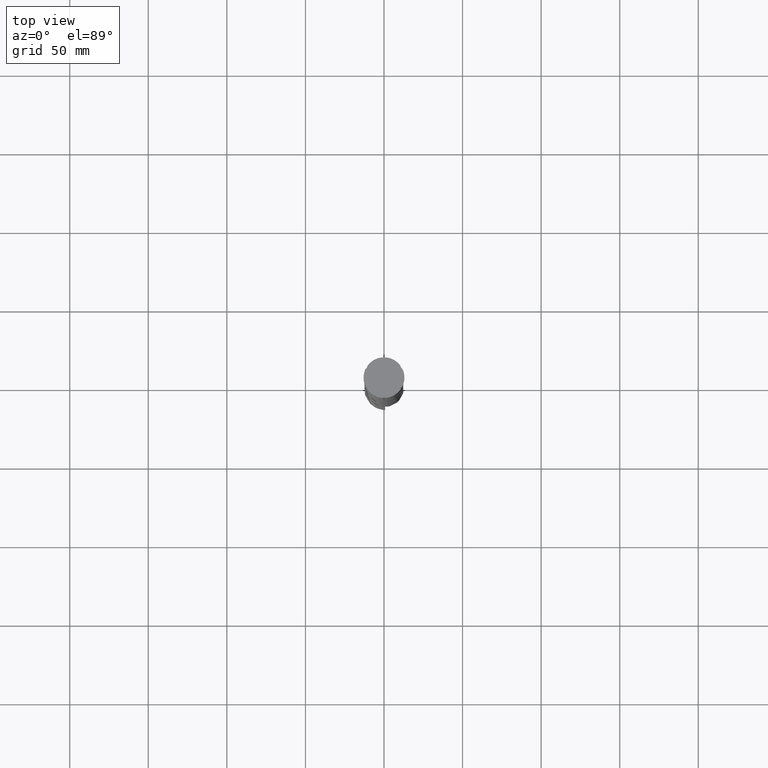
[diagram: clean part render]
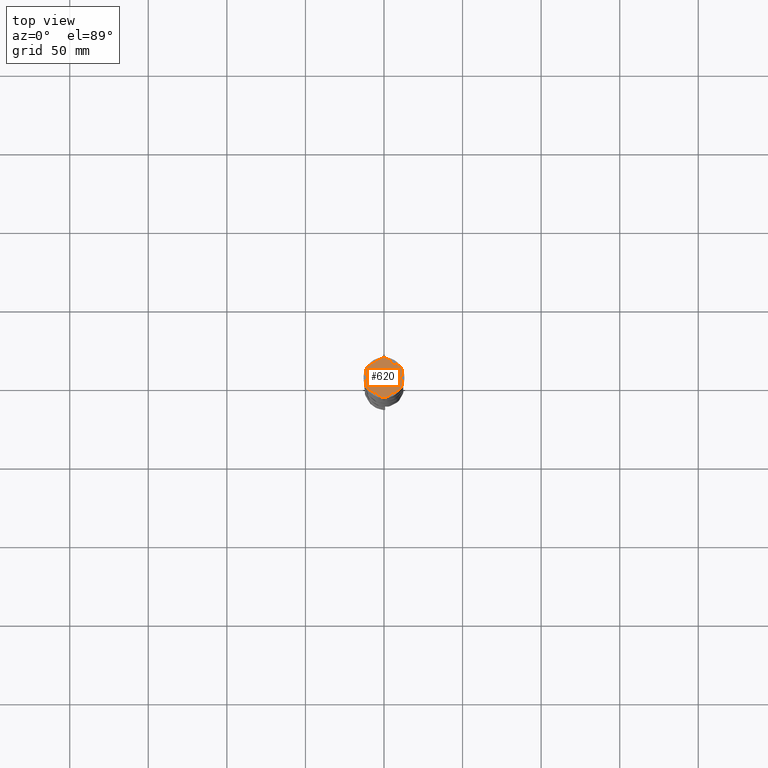
[diagram: same view with one face highlighted and labeled with its STEP entity id]
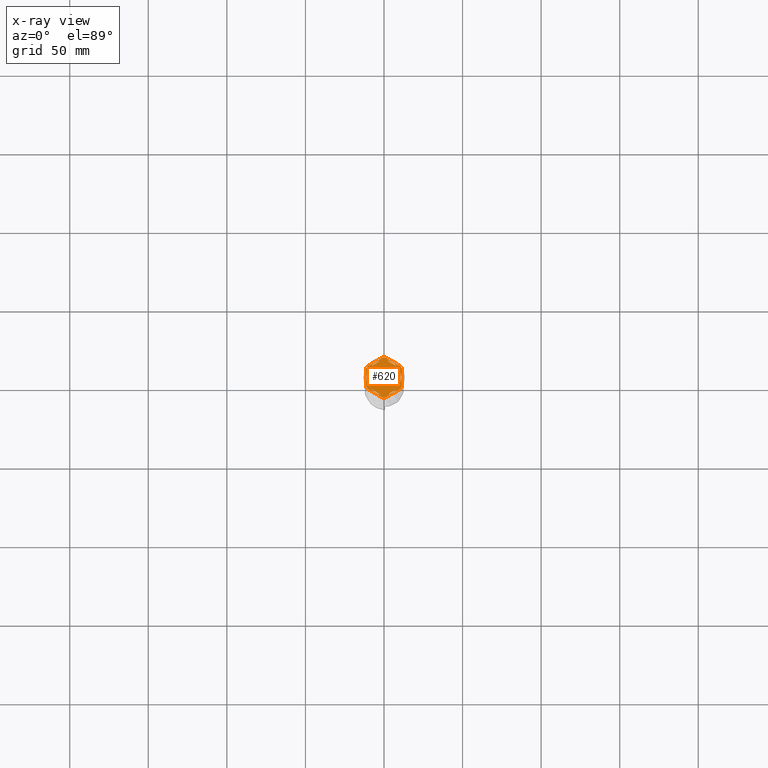
[diagram: x-ray of the same camera — body ghosted, the highlighted face saturated]
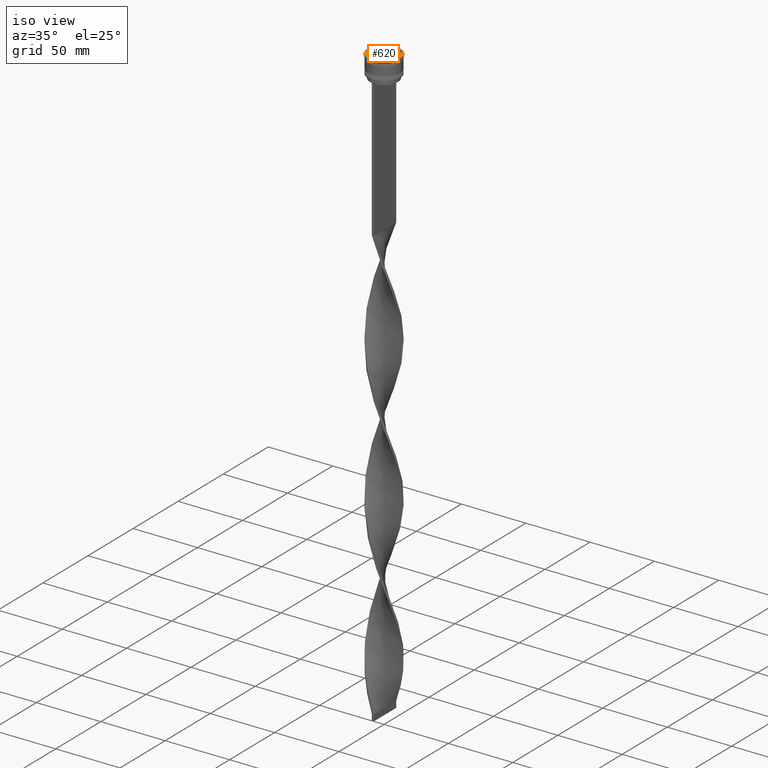
[diagram: same view with one face highlighted and labeled with its STEP entity id]
A machine part, top view. The second image highlights one B-rep face of the part: STEP entity #620.
The next image is the same camera in x-ray: the body ghosted, the highlighted face saturated — about 0% of this face is hidden behind the body in this view.
A second angle (iso view) of the same face is appended — the face is thin or edge-on in the first view.
In plain terms, the highlighted planar face has unit normal (0, 0, 1).
Its self-contained STEP definition (entity closure, byte-faithful):
#11 = CIRCLE ( 'NONE', #1603, 12.69999999999999929 ) ;
#26 = DIRECTION ( 'NONE',  ( 1.000000000000000000, 0.000000000000000000, 0.000000000000000000 ) ) ;
#76 = VERTEX_POINT ( 'NONE', #1584 ) ;
#77 = FACE_BOUND ( 'NONE', #3499, .T. ) ;
#78 = ORIENTED_EDGE ( 'NONE', *, *, #205, .F. ) ;
#92 = CIRCLE ( 'NONE', #2943, 12.69999999999999929 ) ;
#104 = ORIENTED_EDGE ( 'NONE', *, *, #408, .F. ) ;
#129 = VERTEX_POINT ( 'NONE', #567 ) ;
#170 = VECTOR ( 'NONE', #4531, 1000.000000000000000 ) ;
#188 = VERTEX_POINT ( 'NONE', #2782 ) ;
#194 = DIRECTION ( 'NONE',  ( -0.8660254037844388186, 0.4999999999999997224, 0.000000000000000000 ) ) ;
#200 = CARTESIAN_POINT ( 'NONE',  ( 0.000000000000000000, 0.000000000000000000, -1.000000000000000000 ) ) ;
#201 = LINE ( 'NONE', #2986, #289 ) ;
#203 = LINE ( 'NONE', #1679, #170 ) ;
#205 = EDGE_CURVE ( 'NONE', #845, #1471, #203, .T. ) ;
#235 = EDGE_CURVE ( 'NONE', #3604, #1880, #3134, .T. ) ;
#248 = CARTESIAN_POINT ( 'NONE',  ( -11.50000000000000000, 6.639528095680691244, -1.000000000000000000 ) ) ;
#280 = EDGE_CURVE ( 'NONE', #1140, #76, #375, .T. ) ;
#289 = VECTOR ( 'NONE', #3334, 999.9999999999998863 ) ;
#290 = DIRECTION ( 'NONE',  ( -0.000000000000000000, -0.000000000000000000, -1.000000000000000000 ) ) ;
#296 = LINE ( 'NONE', #4586, #2178 ) ;
#346 = EDGE_CURVE ( 'NONE', #1648, #1880, #92, .T. ) ;
#350 = VECTOR ( 'NONE', #3883, 1000.000000000000000 ) ;
#375 = CIRCLE ( 'NONE', #609, 11.00000000000000000 ) ;
#405 = LINE ( 'NONE', #3274, #2341 ) ;
#408 = EDGE_CURVE ( 'NONE', #3604, #2453, #11, .T. ) ;
#449 = ORIENTED_EDGE ( 'NONE', *, *, #1345, .F. ) ;
#464 = DIRECTION ( 'NONE',  ( -0.8660254037844384856, 0.5000000000000002220, 0.000000000000000000 ) ) ;
#483 = CARTESIAN_POINT ( 'NONE',  ( 11.49999999999999822, 5.388877434122992582, -1.000000000000000000 ) ) ;
#506 = AXIS2_PLACEMENT_3D ( 'NONE', #1270, #2710, #2030 ) ;
#546 = CARTESIAN_POINT ( 'NONE',  ( 10.41690475583121867, -7.264853426459537467, -1.000000000000000000 ) ) ;
#567 = CARTESIAN_POINT ( 'NONE',  ( 11.49999999999999822, -5.388877434122996135, -1.000000000000000000 ) ) ;
#568 = DIRECTION ( 'NONE',  ( -0.000000000000000000, -0.000000000000000000, -1.000000000000000000 ) ) ;
#587 = CIRCLE ( 'NONE', #2895, 12.69999999999999929 ) ;
#588 = CARTESIAN_POINT ( 'NONE',  ( -11.00000000000000000, 0.000000000000000000, -1.000000000000000000 ) ) ;
#600 = CIRCLE ( 'NONE', #2914, 11.00000000000000000 ) ;
#609 = AXIS2_PLACEMENT_3D ( 'NONE', #2350, #4207, #960 ) ;
#620 = ADVANCED_FACE ( 'NONE', ( #77, #859, #3266, #2626, #2200, #1132, #3345 ), #781, .T. ) ;
#638 = CARTESIAN_POINT ( 'NONE',  ( -10.49999999999999822, -3.278719262151000624, -1.000000000000000888 ) ) ;
#649 = VERTEX_POINT ( 'NONE', #483 ) ;
#693 = EDGE_CURVE ( 'NONE', #76, #1140, #4561, .T. ) ;
#764 = AXIS2_PLACEMENT_3D ( 'NONE', #1866, #3320, #4045 ) ;
#781 = PLANE ( 'NONE',  #764 ) ;
#796 = EDGE_LOOP ( 'NONE', ( #1944, #2159 ) ) ;
#804 = CIRCLE ( 'NONE', #1948, 11.00000000000000000 ) ;
#822 = VERTEX_POINT ( 'NONE', #546 ) ;
#845 = VERTEX_POINT ( 'NONE', #3418 ) ;
#855 = EDGE_CURVE ( 'NONE', #3240, #4299, #4592, .T. ) ;
#859 = FACE_BOUND ( 'NONE', #3480, .T. ) ;
#885 = ORIENTED_EDGE ( 'NONE', *, *, #2179, .F. ) ;
#943 = LINE ( 'NONE', #248, #4564 ) ;
#944 = VERTEX_POINT ( 'NONE', #2055 ) ;
#960 = DIRECTION ( 'NONE',  ( 1.000000000000000000, 0.000000000000000000, 0.000000000000000000 ) ) ;
#987 = DIRECTION ( 'NONE',  ( 0.000000000000000000, -1.000000000000000000, 0.000000000000000000 ) ) ;
#995 = VECTOR ( 'NONE', #3573, 999.9999999999998863 ) ;
#1010 = ORIENTED_EDGE ( 'NONE', *, *, #4549, .T. ) ;
#1029 = CIRCLE ( 'NONE', #1649, 12.69999999999999929 ) ;
#1040 = DIRECTION ( 'NONE',  ( 1.000000000000000000, 0.000000000000000000, 0.000000000000000000 ) ) ;
#1053 = VERTEX_POINT ( 'NONE', #2204 ) ;
#1056 = CARTESIAN_POINT ( 'NONE',  ( 10.49999999999999467, -3.278719262151014835, -1.000000000000000888 ) ) ;
#1084 = CARTESIAN_POINT ( 'NONE',  ( 0.000000000000000000, 0.000000000000000000, -1.000000000000000000 ) ) ;
#1109 = DIRECTION ( 'NONE',  ( 0.000000000000000000, 0.000000000000000000, 1.000000000000000000 ) ) ;
#1116 = VECTOR ( 'NONE', #3518, 1000.000000000000114 ) ;
#1132 = FACE_BOUND ( 'NONE', #1922, .T. ) ;
#1136 = CARTESIAN_POINT ( 'NONE',  ( 0.000000000000000000, 0.000000000000000000, -1.000000000000000000 ) ) ;
#1140 = VERTEX_POINT ( 'NONE', #4020 ) ;
#1151 = ORIENTED_EDGE ( 'NONE', *, *, #693, .F. ) ;
#1165 = EDGE_CURVE ( 'NONE', #2429, #188, #2832, .T. ) ;
#1167 = ORIENTED_EDGE ( 'NONE', *, *, #346, .F. ) ;
#1189 = CARTESIAN_POINT ( 'NONE',  ( 10.41690475583121156, 7.264853426459550789, -1.000000000000000000 ) ) ;
#1248 = CARTESIAN_POINT ( 'NONE',  ( 2.410545827099865868, -10.73262637081210791, -1.000000000000000888 ) ) ;
#1259 = VERTEX_POINT ( 'NONE', #1189 ) ;
#1270 = CARTESIAN_POINT ( 'NONE',  ( 0.000000000000000000, 0.000000000000000000, -1.000000000000000000 ) ) ;
#1283 = LINE ( 'NONE', #3659, #3954 ) ;
#1336 = VECTOR ( 'NONE', #1421, 1000.000000000000000 ) ;
#1345 = EDGE_CURVE ( 'NONE', #129, #822, #587, .T. ) ;
#1347 = ORIENTED_EDGE ( 'NONE', *, *, #2074, .F. ) ;
#1357 = CARTESIAN_POINT ( 'NONE',  ( 5.612359739892467248E-18, -13.27905619136138959, -1.000000000000000000 ) ) ;
#1395 = CARTESIAN_POINT ( 'NONE',  ( 10.49999999999999467, 6.062177826491072175, -1.000000000000000888 ) ) ;
#1403 = EDGE_CURVE ( 'NONE', #944, #2937, #4107, .T. ) ;
#1421 = DIRECTION ( 'NONE',  ( 0.8660254037844385966, 0.5000000000000001110, -0.000000000000000000 ) ) ;
#1471 = VERTEX_POINT ( 'NONE', #1056 ) ;
#1512 = EDGE_CURVE ( 'NONE', #3484, #4372, #4258, .T. ) ;
#1524 = DIRECTION ( 'NONE',  ( 1.000000000000000000, 0.000000000000000000, 0.000000000000000000 ) ) ;
#1542 = EDGE_LOOP ( 'NONE', ( #4571, #1741 ) ) ;
#1584 = CARTESIAN_POINT ( 'NONE',  ( 2.410545827099861871, 10.73262637081210791, -1.000000000000000888 ) ) ;
#1603 = AXIS2_PLACEMENT_3D ( 'NONE', #3630, #3714, #3365 ) ;
#1623 = DIRECTION ( 'NONE',  ( 1.000000000000000000, 0.000000000000000000, 0.000000000000000000 ) ) ;
#1648 = VERTEX_POINT ( 'NONE', #3036 ) ;
#1649 = AXIS2_PLACEMENT_3D ( 'NONE', #1951, #3025, #4453 ) ;
#1663 = CARTESIAN_POINT ( 'NONE',  ( -1.083095244168779780, -12.65373086058253982, -1.000000000000000000 ) ) ;
#1679 = CARTESIAN_POINT ( 'NONE',  ( 10.49999999999999289, -6.062177826491073063, -1.000000000000000888 ) ) ;
#1741 = ORIENTED_EDGE ( 'NONE', *, *, #2097, .F. ) ;
#1776 = LINE ( 'NONE', #4629, #1336 ) ;
#1811 = LINE ( 'NONE', #2216, #1969 ) ;
#1840 = ORIENTED_EDGE ( 'NONE', *, *, #2784, .F. ) ;
#1866 = CARTESIAN_POINT ( 'NONE',  ( 0.000000000000000000, 0.000000000000000000, -1.000000000000000000 ) ) ;
#1880 = VERTEX_POINT ( 'NONE', #3372 ) ;
#1922 = EDGE_LOOP ( 'NONE', ( #4384, #2254 ) ) ;
#1944 = ORIENTED_EDGE ( 'NONE', *, *, #2674, .F. ) ;
#1948 = AXIS2_PLACEMENT_3D ( 'NONE', #4613, #2120, #1040 ) ;
#1951 = CARTESIAN_POINT ( 'NONE',  ( 0.000000000000000000, 0.000000000000000000, -1.000000000000000000 ) ) ;
#1969 = VECTOR ( 'NONE', #3629, 1000.000000000000000 ) ;
#2000 = ORIENTED_EDGE ( 'NONE', *, *, #3550, .T. ) ;
#2014 = DIRECTION ( 'NONE',  ( 1.000000000000000000, 7.105427357601001859E-15, 0.000000000000000000 ) ) ;
#2030 = DIRECTION ( 'NONE',  ( 1.000000000000000000, 0.000000000000000000, 0.000000000000000000 ) ) ;
#2055 = CARTESIAN_POINT ( 'NONE',  ( 1.083095244168774673, -12.65373086058253982, -1.000000000000000000 ) ) ;
#2074 = EDGE_CURVE ( 'NONE', #4372, #3723, #2327, .T. ) ;
#2080 = ORIENTED_EDGE ( 'NONE', *, *, #235, .T. ) ;
#2083 = CARTESIAN_POINT ( 'NONE',  ( 0.000000000000000000, 0.000000000000000000, -1.000000000000000000 ) ) ;
#2097 = EDGE_CURVE ( 'NONE', #4333, #4163, #201, .T. ) ;
#2120 = DIRECTION ( 'NONE',  ( 0.000000000000000000, 0.000000000000000000, 1.000000000000000000 ) ) ;
#2134 = CARTESIAN_POINT ( 'NONE',  ( -11.50000000000000000, -5.388877434122992582, -1.000000000000000000 ) ) ;
#2153 = CARTESIAN_POINT ( 'NONE',  ( 1.083095244168781557, 12.65373086058254160, -1.000000000000000000 ) ) ;
#2159 = ORIENTED_EDGE ( 'NONE', *, *, #4167, .F. ) ;
#2178 = VECTOR ( 'NONE', #194, 1000.000000000000000 ) ;
#2179 = EDGE_CURVE ( 'NONE', #1471, #845, #804, .T. ) ;
#2200 = FACE_BOUND ( 'NONE', #2551, .T. ) ;
#2204 = CARTESIAN_POINT ( 'NONE',  ( -2.410545827099876082, -10.73262637081210435, -1.000000000000000888 ) ) ;
#2213 = CARTESIAN_POINT ( 'NONE',  ( -1.083095244168783333, 12.65373086058254160, -1.000000000000000000 ) ) ;
#2216 = CARTESIAN_POINT ( 'NONE',  ( 11.49999999999999822, -6.639528095680694797, -1.000000000000000000 ) ) ;
#2244 = DIRECTION ( 'NONE',  ( 0.8660254037844387076, -0.4999999999999997780, 0.000000000000000000 ) ) ;
#2254 = ORIENTED_EDGE ( 'NONE', *, *, #2340, .F. ) ;
#2255 = AXIS2_PLACEMENT_3D ( 'NONE', #4459, #3303, #1524 ) ;
#2262 = ORIENTED_EDGE ( 'NONE', *, *, #3205, .T. ) ;
#2320 = DIRECTION ( 'NONE',  ( 1.000000000000000000, 0.000000000000000000, 0.000000000000000000 ) ) ;
#2327 = CIRCLE ( 'NONE', #3448, 11.00000000000000000 ) ;
#2330 = DIRECTION ( 'NONE',  ( 0.000000000000000000, 0.000000000000000000, 1.000000000000000000 ) ) ;
#2339 = CARTESIAN_POINT ( 'NONE',  ( -10.49999999999999822, 3.278719262151000624, -1.000000000000000888 ) ) ;
#2340 = EDGE_CURVE ( 'NONE', #188, #2429, #1776, .T. ) ;
#2341 = VECTOR ( 'NONE', #464, 1000.000000000000000 ) ;
#2350 = CARTESIAN_POINT ( 'NONE',  ( 0.000000000000000000, 0.000000000000000000, -1.000000000000000000 ) ) ;
#2410 = ORIENTED_EDGE ( 'NONE', *, *, #1512, .F. ) ;
#2429 = VERTEX_POINT ( 'NONE', #2920 ) ;
#2433 = DIRECTION ( 'NONE',  ( -0.8660254037844385966, -0.5000000000000001110, 0.000000000000000000 ) ) ;
#2453 = VERTEX_POINT ( 'NONE', #2153 ) ;
#2460 = ORIENTED_EDGE ( 'NONE', *, *, #4596, .T. ) ;
#2512 = EDGE_LOOP ( 'NONE', ( #1010, #1840, #3639, #104, #2080, #1167, #2000, #4353, #2262, #3191, #2460, #449 ) ) ;
#2524 = LINE ( 'NONE', #1357, #1116 ) ;
#2536 = CIRCLE ( 'NONE', #4189, 11.00000000000000000 ) ;
#2551 = EDGE_LOOP ( 'NONE', ( #1347, #2410, #3716 ) ) ;
#2577 = AXIS2_PLACEMENT_3D ( 'NONE', #200, #568, #2014 ) ;
#2626 = FACE_BOUND ( 'NONE', #796, .T. ) ;
#2653 = DIRECTION ( 'NONE',  ( 1.000000000000000000, 0.000000000000000000, 0.000000000000000000 ) ) ;
#2674 = EDGE_CURVE ( 'NONE', #3557, #1053, #2536, .T. ) ;
#2710 = DIRECTION ( 'NONE',  ( -0.000000000000000000, -0.000000000000000000, -1.000000000000000000 ) ) ;
#2721 = DIRECTION ( 'NONE',  ( 1.000000000000000000, 0.000000000000000000, 0.000000000000000000 ) ) ;
#2722 = CARTESIAN_POINT ( 'NONE',  ( -10.41690475583121334, -7.264853426459548125, -1.000000000000000000 ) ) ;
#2739 = CARTESIAN_POINT ( 'NONE',  ( -8.089454172900133244, -7.453907108661111280, -1.000000000000000888 ) ) ;
#2782 = CARTESIAN_POINT ( 'NONE',  ( -8.089454172900135021, 7.453907108661106840, -1.000000000000000888 ) ) ;
#2784 = EDGE_CURVE ( 'NONE', #1259, #649, #1029, .T. ) ;
#2832 = CIRCLE ( 'NONE', #3138, 11.00000000000000000 ) ;
#2895 = AXIS2_PLACEMENT_3D ( 'NONE', #3754, #3081, #1623 ) ;
#2914 = AXIS2_PLACEMENT_3D ( 'NONE', #1084, #4282, #4245 ) ;
#2920 = CARTESIAN_POINT ( 'NONE',  ( -2.410545827099867200, 10.73262637081210613, -1.000000000000000888 ) ) ;
#2937 = VERTEX_POINT ( 'NONE', #1663 ) ;
#2943 = AXIS2_PLACEMENT_3D ( 'NONE', #2083, #290, #2721 ) ;
#2986 = CARTESIAN_POINT ( 'NONE',  ( -2.602085213965210642E-15, -12.12435565298214080, -1.000000000000000888 ) ) ;
#3025 = DIRECTION ( 'NONE',  ( -0.000000000000000000, -0.000000000000000000, -1.000000000000000000 ) ) ;
#3036 = CARTESIAN_POINT ( 'NONE',  ( -11.50000000000000000, 5.388877434122992582, -1.000000000000000000 ) ) ;
#3081 = DIRECTION ( 'NONE',  ( -0.000000000000000000, -0.000000000000000000, -1.000000000000000000 ) ) ;
#3134 = LINE ( 'NONE', #3786, #4649 ) ;
#3138 = AXIS2_PLACEMENT_3D ( 'NONE', #1136, #1109, #26 ) ;
#3191 = ORIENTED_EDGE ( 'NONE', *, *, #1403, .F. ) ;
#3205 = EDGE_CURVE ( 'NONE', #3240, #2937, #1283, .T. ) ;
#3240 = VERTEX_POINT ( 'NONE', #2722 ) ;
#3266 = FACE_BOUND ( 'NONE', #1542, .T. ) ;
#3274 = CARTESIAN_POINT ( 'NONE',  ( -10.49999999999999822, -6.062177826491068622, -1.000000000000000888 ) ) ;
#3303 = DIRECTION ( 'NONE',  ( 0.000000000000000000, 0.000000000000000000, 1.000000000000000000 ) ) ;
#3320 = DIRECTION ( 'NONE',  ( 0.000000000000000000, 0.000000000000000000, 1.000000000000000000 ) ) ;
#3334 = DIRECTION ( 'NONE',  ( -0.8660254037844387076, -0.4999999999999999445, 0.000000000000000000 ) ) ;
#3345 = FACE_OUTER_BOUND ( 'NONE', #2512, .T. ) ;
#3365 = DIRECTION ( 'NONE',  ( 1.000000000000000000, 1.243449787580175325E-14, 0.000000000000000000 ) ) ;
#3372 = CARTESIAN_POINT ( 'NONE',  ( -10.41690475583121689, 7.264853426459546348, -1.000000000000000000 ) ) ;
#3418 = CARTESIAN_POINT ( 'NONE',  ( 10.49999999999999467, 3.278719262151012170, -1.000000000000000888 ) ) ;
#3448 = AXIS2_PLACEMENT_3D ( 'NONE', #3501, #4113, #2320 ) ;
#3480 = EDGE_LOOP ( 'NONE', ( #885, #78 ) ) ;
#3484 = VERTEX_POINT ( 'NONE', #638 ) ;
#3499 = EDGE_LOOP ( 'NONE', ( #3663, #1151 ) ) ;
#3501 = CARTESIAN_POINT ( 'NONE',  ( 0.000000000000000000, 0.000000000000000000, -1.000000000000000000 ) ) ;
#3518 = DIRECTION ( 'NONE',  ( 0.8660254037844385966, 0.4999999999999999445, 0.000000000000000000 ) ) ;
#3550 = EDGE_CURVE ( 'NONE', #1648, #4299, #943, .T. ) ;
#3552 = CARTESIAN_POINT ( 'NONE',  ( 8.089454172900135021, -7.453907108661109504, -1.000000000000000888 ) ) ;
#3557 = VERTEX_POINT ( 'NONE', #2739 ) ;
#3573 = DIRECTION ( 'NONE',  ( 0.8660254037844387076, -0.4999999999999999445, 0.000000000000000000 ) ) ;
#3604 = VERTEX_POINT ( 'NONE', #2213 ) ;
#3629 = DIRECTION ( 'NONE',  ( 1.306360520641008153E-16, 1.000000000000000000, 0.000000000000000000 ) ) ;
#3630 = CARTESIAN_POINT ( 'NONE',  ( 0.000000000000000000, 0.000000000000000000, -1.000000000000000000 ) ) ;
#3639 = ORIENTED_EDGE ( 'NONE', *, *, #4340, .T. ) ;
#3659 = CARTESIAN_POINT ( 'NONE',  ( -11.50000000000000000, -6.639528095680696573, -1.000000000000000000 ) ) ;
#3661 = CIRCLE ( 'NONE', #2255, 11.00000000000000000 ) ;
#3663 = ORIENTED_EDGE ( 'NONE', *, *, #280, .F. ) ;
#3714 = DIRECTION ( 'NONE',  ( -0.000000000000000000, -0.000000000000000000, -1.000000000000000000 ) ) ;
#3716 = ORIENTED_EDGE ( 'NONE', *, *, #4111, .F. ) ;
#3723 = VERTEX_POINT ( 'NONE', #588 ) ;
#3754 = CARTESIAN_POINT ( 'NONE',  ( 0.000000000000000000, 0.000000000000000000, -1.000000000000000000 ) ) ;
#3786 = CARTESIAN_POINT ( 'NONE',  ( 0.000000000000000000, 13.27905619136138959, -1.000000000000000000 ) ) ;
#3791 = CARTESIAN_POINT ( 'NONE',  ( 0.000000000000000000, 0.000000000000000000, -1.000000000000000000 ) ) ;
#3883 = DIRECTION ( 'NONE',  ( 0.000000000000000000, 1.000000000000000000, 0.000000000000000000 ) ) ;
#3891 = EDGE_CURVE ( 'NONE', #4163, #4333, #600, .T. ) ;
#3954 = VECTOR ( 'NONE', #2244, 1000.000000000000227 ) ;
#4020 = CARTESIAN_POINT ( 'NONE',  ( 8.089454172900138573, 7.453907108661105063, -1.000000000000000888 ) ) ;
#4045 = DIRECTION ( 'NONE',  ( 1.000000000000000000, 0.000000000000000000, -0.000000000000000000 ) ) ;
#4107 = CIRCLE ( 'NONE', #506, 12.69999999999999929 ) ;
#4111 = EDGE_CURVE ( 'NONE', #3723, #3484, #3661, .T. ) ;
#4113 = DIRECTION ( 'NONE',  ( 0.000000000000000000, 0.000000000000000000, 1.000000000000000000 ) ) ;
#4163 = VERTEX_POINT ( 'NONE', #1248 ) ;
#4167 = EDGE_CURVE ( 'NONE', #1053, #3557, #405, .T. ) ;
#4189 = AXIS2_PLACEMENT_3D ( 'NONE', #3791, #2330, #2653 ) ;
#4207 = DIRECTION ( 'NONE',  ( 0.000000000000000000, 0.000000000000000000, 1.000000000000000000 ) ) ;
#4245 = DIRECTION ( 'NONE',  ( 1.000000000000000000, 0.000000000000000000, 0.000000000000000000 ) ) ;
#4258 = LINE ( 'NONE', #4589, #350 ) ;
#4282 = DIRECTION ( 'NONE',  ( 0.000000000000000000, 0.000000000000000000, 1.000000000000000000 ) ) ;
#4299 = VERTEX_POINT ( 'NONE', #2134 ) ;
#4333 = VERTEX_POINT ( 'NONE', #3552 ) ;
#4340 = EDGE_CURVE ( 'NONE', #1259, #2453, #296, .T. ) ;
#4353 = ORIENTED_EDGE ( 'NONE', *, *, #855, .F. ) ;
#4372 = VERTEX_POINT ( 'NONE', #2339 ) ;
#4384 = ORIENTED_EDGE ( 'NONE', *, *, #1165, .F. ) ;
#4453 = DIRECTION ( 'NONE',  ( 1.000000000000000000, -1.776356839400250465E-14, 0.000000000000000000 ) ) ;
#4459 = CARTESIAN_POINT ( 'NONE',  ( 0.000000000000000000, 0.000000000000000000, -1.000000000000000000 ) ) ;
#4531 = DIRECTION ( 'NONE',  ( -1.430775808321104180E-16, -1.000000000000000000, 0.000000000000000000 ) ) ;
#4549 = EDGE_CURVE ( 'NONE', #129, #649, #1811, .T. ) ;
#4561 = LINE ( 'NONE', #1395, #995 ) ;
#4564 = VECTOR ( 'NONE', #987, 1000.000000000000000 ) ;
#4571 = ORIENTED_EDGE ( 'NONE', *, *, #3891, .F. ) ;
#4586 = CARTESIAN_POINT ( 'NONE',  ( 11.50000000000000000, 6.639528095680698350, -1.000000000000000000 ) ) ;
#4589 = CARTESIAN_POINT ( 'NONE',  ( -10.49999999999999822, 6.062177826491068622, -1.000000000000000888 ) ) ;
#4592 = CIRCLE ( 'NONE', #2577, 12.69999999999999929 ) ;
#4596 = EDGE_CURVE ( 'NONE', #944, #822, #2524, .T. ) ;
#4613 = CARTESIAN_POINT ( 'NONE',  ( 0.000000000000000000, 0.000000000000000000, -1.000000000000000000 ) ) ;
#4629 = CARTESIAN_POINT ( 'NONE',  ( -1.734723475976807094E-15, 12.12435565298214080, -1.000000000000000888 ) ) ;
#4649 = VECTOR ( 'NONE', #2433, 1000.000000000000114 ) ;